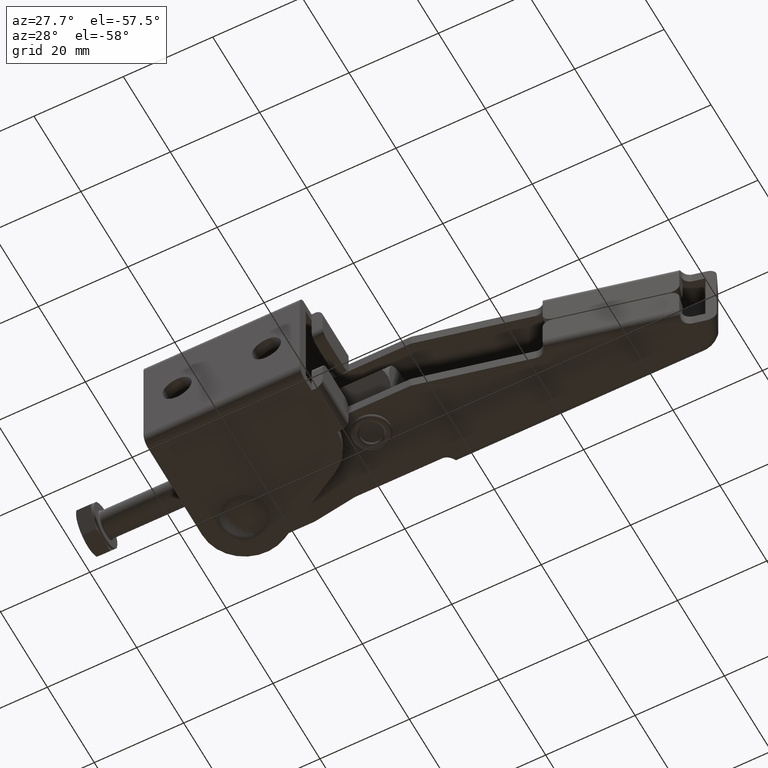
[diagram: clean part render]
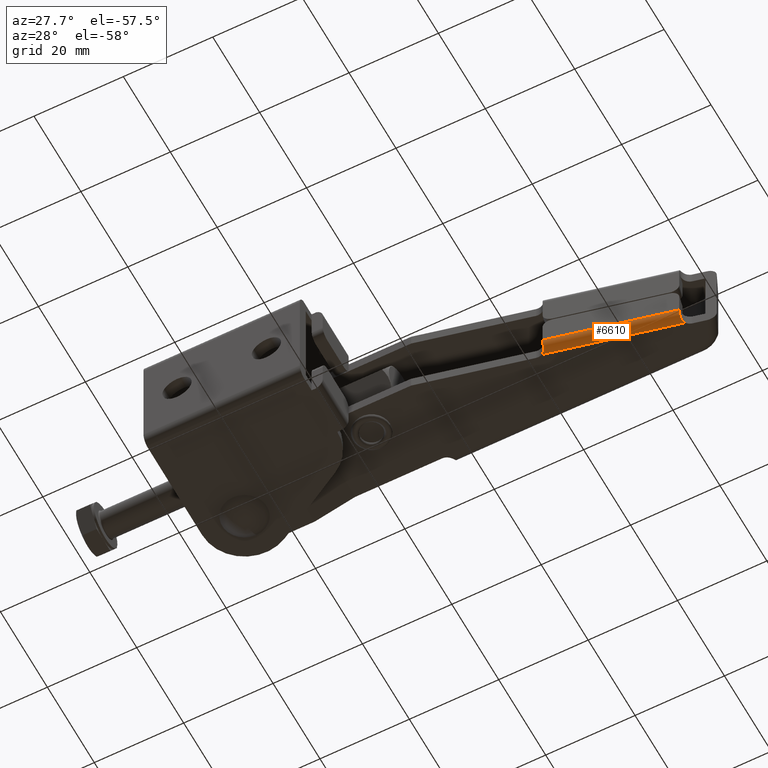
[diagram: same view with one face highlighted and labeled with its STEP entity id]
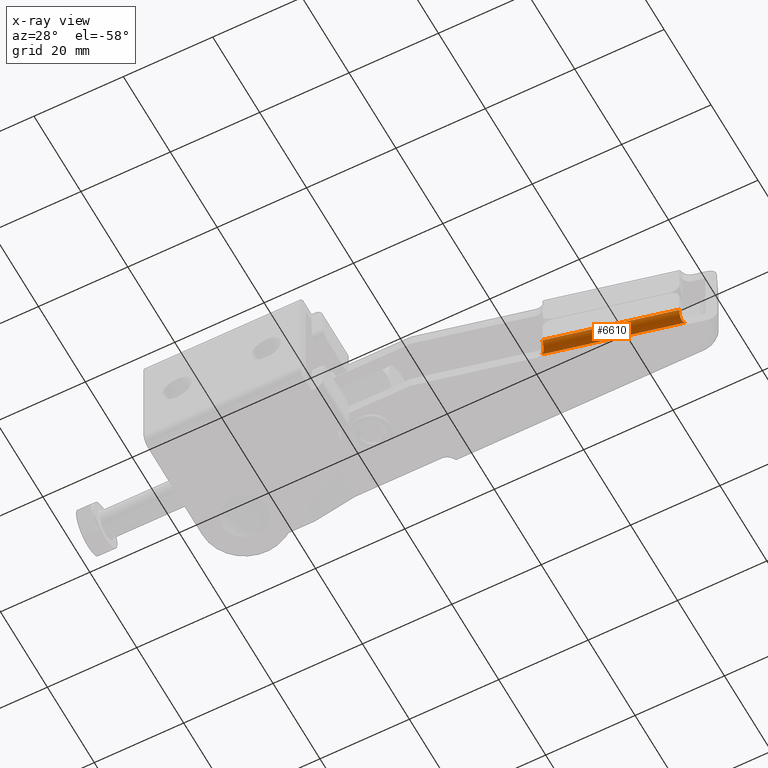
[diagram: x-ray of the same camera — body ghosted, the highlighted face saturated]
A machine part, auxiliary view. The second image highlights one B-rep face of the part: STEP entity #6610.
The next image is the same camera in x-ray: the body ghosted, the highlighted face saturated — about 0% of this face is hidden behind the body in this view.
In plain terms, the highlighted cylindrical surface (edge-blend (fillet) strip) has radius 2 mm, axis along (0.9744, 0.225, 0).
Its self-contained STEP definition (entity closure, byte-faithful):
#123 = DIRECTION ( 'NONE',  ( 0.2249510541895359300, -0.9743700648208649700, 0.0000000000000000000 ) ) ;
#169 = ORIENTED_EDGE ( 'NONE', *, *, #3115, .F. ) ;
#177 = ORIENTED_EDGE ( 'NONE', *, *, #1225, .F. ) ;
#368 = B_SPLINE_CURVE_WITH_KNOTS ( 'NONE', 3,
 ( #5216, #2575, #4201, #947, #4751, #1486, #5293, #2034, #5841, #2593 ),
 .UNSPECIFIED., .F., .F.,
 ( 4, 2, 2, 2, 4 ),
 ( 0.0000000000000000000, 0.0004695840333561090500, 0.0009391680667122181000, 0.001408752100068327200, 0.001878336133424436200 ),
 .UNSPECIFIED. ) ;
#397 = FACE_OUTER_BOUND ( 'NONE', #1827, .T. ) ;
#420 = CARTESIAN_POINT ( 'NONE',  ( 60.59123322560429900, 21.39860648552211600, -8.991916871768614400 ) ) ;
#845 = CARTESIAN_POINT ( 'NONE',  ( 88.71615724700001200, 26.06645997999999800, -6.999999999999997300 ) ) ;
#864 = AXIS2_PLACEMENT_3D ( 'NONE', #6689, #3404, #123 ) ;
#902 = VERTEX_POINT ( 'NONE', #4939 ) ;
#947 = CARTESIAN_POINT ( 'NONE',  ( 88.54840460832289800, 27.03007072012931600, -8.725424714130831200 ) ) ;
#989 = CARTESIAN_POINT ( 'NONE',  ( 60.82357821298128200, 21.19037149407979500, -8.946687898242093000 ) ) ;
#1080 = ORIENTED_EDGE ( 'NONE', *, *, #5906, .F. ) ;
#1161 = DIRECTION ( 'NONE',  ( -0.9743700647823491100, -0.2249510543563658900, 0.0000000000000000000 ) ) ;
#1193 = CARTESIAN_POINT ( 'NONE',  ( 61.32131990546213300, 20.25501549115686500, -8.322875656469996400 ) ) ;
#1204 = DIRECTION ( 'NONE',  ( -0.2249510543563677500, 0.9743700647823487800, 0.0000000000000000000 ) ) ;
#1225 = EDGE_CURVE ( 'NONE', #3727, #4795, #1667, .T. ) ;
#1470 = B_SPLINE_CURVE_WITH_KNOTS ( 'NONE', 3,
 ( #6962, #4253, #420, #989, #4789, #1526, #5346, #2083, #5889, #2647 ),
 .UNSPECIFIED., .F., .F.,
 ( 4, 2, 2, 2, 4 ),
 ( 0.0000000000000000000, 0.0004695840331527345700, 0.0009391680663054691400, 0.001408752099458203700, 0.001878336132610938300 ),
 .UNSPECIFIED. ) ;
#1486 = CARTESIAN_POINT ( 'NONE',  ( 88.59979634646046500, 27.46044438340718600, -8.908561440028410800 ) ) ;
#1526 = CARTESIAN_POINT ( 'NONE',  ( 61.09375227970601700, 20.83423714665497400, -8.799800318013954100 ) ) ;
#1559 = LINE ( 'NONE', #3890, #4127 ) ;
#1621 = EDGE_CURVE ( 'NONE', #4706, #6171, #3618, .T. ) ;
#1667 = LINE ( 'NONE', #2819, #5832 ) ;
#1682 = ORIENTED_EDGE ( 'NONE', *, *, #4367, .F. ) ;
#1819 = AXIS2_PLACEMENT_3D ( 'NONE', #5477, #2217, #6017 ) ;
#1827 = EDGE_LOOP ( 'NONE', ( #169, #1080, #4218, #1910, #177, #1682 ) ) ;
#1910 = ORIENTED_EDGE ( 'NONE', *, *, #4418, .F. ) ;
#1938 = CARTESIAN_POINT ( 'NONE',  ( 61.43379543299999300, 19.76783045799999900, -6.999999999999997300 ) ) ;
#2034 = CARTESIAN_POINT ( 'NONE',  ( 88.75705413821467000, 27.89837253072194300, -8.991569747177589300 ) ) ;
#2083 = CARTESIAN_POINT ( 'NONE',  ( 61.26266290910522400, 20.47161091275880200, -8.548060635193538200 ) ) ;
#2217 = DIRECTION ( 'NONE',  ( -0.9743700648208704100, -0.2249510541895119700, 0.0000000000000000000 ) ) ;
#2267 = AXIS2_PLACEMENT_3D ( 'NONE', #2834, #5012, #1204 ) ;
#2575 = CARTESIAN_POINT ( 'NONE',  ( 88.58010339618464000, 26.65577395509778600, -8.441725094745589100 ) ) ;
#2593 = CARTESIAN_POINT ( 'NONE',  ( 88.92602483049599000, 28.16751994497331100, -8.999999999999998200 ) ) ;
#2647 = CARTESIAN_POINT ( 'NONE',  ( 61.32131990546213300, 20.25501549115686500, -8.322875656469996400 ) ) ;
#2819 = CARTESIAN_POINT ( 'NONE',  ( 60.98389332428725900, 21.71657058756469600, -8.999999999999998200 ) ) ;
#2834 = CARTESIAN_POINT ( 'NONE',  ( 89.64545554408110200, 28.33361361246859600, -6.999999999999997300 ) ) ;
#3115 = EDGE_CURVE ( 'NONE', #4990, #902, #4416, .T. ) ;
#3357 = DIRECTION ( 'NONE',  ( 0.9743700647823491100, 0.2249510543563658900, -0.0000000000000000000 ) ) ;
#3404 = DIRECTION ( 'NONE',  ( 0.9743700648208643000, 0.2249510541895392300, -0.0000000000000000000 ) ) ;
#3618 = CIRCLE ( 'NONE', #1819, 1.999999999999998200 ) ;
#3727 = VERTEX_POINT ( 'NONE', #6016 ) ;
#3890 = CARTESIAN_POINT ( 'NONE',  ( 88.71615724700001200, 26.06645997999999800, -6.999999999999997300 ) ) ;
#3985 = CARTESIAN_POINT ( 'NONE',  ( 60.32412363313899600, 21.56425075240090500, -8.999999999999998200 ) ) ;
#4127 = VECTOR ( 'NONE', #3357, 1000.000000000000100 ) ;
#4201 = CARTESIAN_POINT ( 'NONE',  ( 88.56173430436777500, 26.77127206440870600, -8.545877394583312600 ) ) ;
#4218 = ORIENTED_EDGE ( 'NONE', *, *, #1621, .F. ) ;
#4253 = CARTESIAN_POINT ( 'NONE',  ( 60.46350529245998500, 21.48885711688596000, -8.999999999999998200 ) ) ;
#4367 = EDGE_CURVE ( 'NONE', #902, #3727, #368, .T. ) ;
#4416 = CIRCLE ( 'NONE', #864, 1.999999999999998900 ) ;
#4418 = EDGE_CURVE ( 'NONE', #4795, #4706, #1470, .T. ) ;
#4706 = VERTEX_POINT ( 'NONE', #1193 ) ;
#4751 = CARTESIAN_POINT ( 'NONE',  ( 88.55403789710156600, 27.17076865749052700, -8.798284885467635900 ) ) ;
#4789 = CARTESIAN_POINT ( 'NONE',  ( 60.92512487974210000, 21.07441799923642000, -8.909548841024989200 ) ) ;
#4795 = VERTEX_POINT ( 'NONE', #3985 ) ;
#4939 = CARTESIAN_POINT ( 'NONE',  ( 88.60368172027251900, 26.55364501299249000, -8.322875656081691900 ) ) ;
#4990 = VERTEX_POINT ( 'NONE', #845 ) ;
#5012 = DIRECTION ( 'NONE',  ( 0.9743700647823492200, 0.2249510543563659200, 0.0000000000000000000 ) ) ;
#5216 = CARTESIAN_POINT ( 'NONE',  ( 88.60368172027251900, 26.55364501299249000, -8.322875656081691900 ) ) ;
#5293 = CARTESIAN_POINT ( 'NONE',  ( 88.64055863715211100, 27.61086646843129000, -8.946274934690338300 ) ) ;
#5346 = CARTESIAN_POINT ( 'NONE',  ( 61.16140683768251300, 20.70884506339039500, -8.726245155691076500 ) ) ;
#5477 = CARTESIAN_POINT ( 'NONE',  ( 60.98389332462096500, 21.71657058764173700, -6.999999999999997300 ) ) ;
#5832 = VECTOR ( 'NONE', #1161, 1000.000000000000100 ) ;
#5841 = CARTESIAN_POINT ( 'NONE',  ( 88.83373942070328200, 28.03857130258301200, -9.000000000000000000 ) ) ;
#5857 = CYLINDRICAL_SURFACE ( 'NONE', #2267, 1.999999999999999100 ) ;
#5889 = CARTESIAN_POINT ( 'NONE',  ( 61.29772613976110300, 20.35721131796225300, -8.441802930115944300 ) ) ;
#5906 = EDGE_CURVE ( 'NONE', #6171, #4990, #1559, .T. ) ;
#6016 = CARTESIAN_POINT ( 'NONE',  ( 88.92602483049599000, 28.16751994497331100, -8.999999999999998200 ) ) ;
#6017 = DIRECTION ( 'NONE',  ( -0.2249510541895117200, 0.9743700648208705200, 1.734723475976808700E-015 ) ) ;
#6171 = VERTEX_POINT ( 'NONE', #1938 ) ;
#6610 = ADVANCED_FACE ( 'NONE', ( #397 ), #5857, .T. ) ;
#6689 = CARTESIAN_POINT ( 'NONE',  ( 88.26625513862092000, 28.01520010964172500, -6.999999999999997300 ) ) ;
#6962 = CARTESIAN_POINT ( 'NONE',  ( 60.32412363313899600, 21.56425075240090500, -8.999999999999998200 ) ) ;